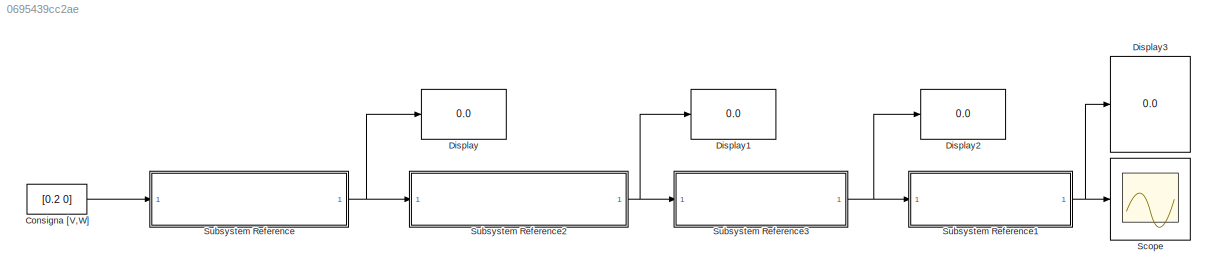
MODEL slx_0695439cc2ae
KIND model
CONFIG AbsTol = auto
CONFIG EnableMultiTasking = on
CONFIG FixedStep = auto
CONFIG MaxStep = auto
CONFIG MinStep = auto
CONFIG RelTol = 1e-3
CONFIG SampleTimeConstraint = Unconstrained
CONFIG SolverName = FixedStepDiscrete
CONFIG StartTime = 0.0
CONFIG StopTime = 10.0
WORKSPACE source: mxarray member
WORKSPACE d = 0.18
BLOCK [Constant] Consigna [V,W]
  Value = [0.2 0]
BLOCK [Display] Display
  Decimation = 1
BLOCK [Display] Display1
  Decimation = 1
BLOCK [Display] Display2
  Decimation = 1
BLOCK [Display] Display3
  Decimation = 1
BLOCK [Scope] Scope
  Floating = off
  NumInputPorts = 1
  ScopeSpecificationString = Simulink.scopes.TimeScopeBlockCfg('CurrentConfiguration', extmgr.ConfigurationSet(extmgr.Configuration('Core','General UI',true),extmgr.Configuration('Core','Source UI',true),extmgr.Configuration('Sources','WiredSimulink',true),extmgr.Configuration('Visuals','Time Domain',true,'SerializedDisplays',{struct('MinYLimReal','-0.48971','MaxYLimReal','1.9937','YLabelReal','','MinYLimMag','0.00000','MaxYL...<+1477ch>
BLOCK [SubSystem] Subsystem Reference
  ReferencedSubsystem = MyPieroMCI
BLOCK [SubSystem] Subsystem Reference1
  ReferencedSubsystem = Odometria
BLOCK [SubSystem] Subsystem Reference2
  ReferencedSubsystem = MyPieroControlVel
BLOCK [SubSystem] Subsystem Reference3
  ReferencedSubsystem = MyPieroMCD
LINE Consigna [V,W]:1 -> Subsystem Reference:1
NET Subsystem Reference1:1 -> Display3:1, Scope:1
NET Subsystem Reference2:1 -> Display1:1, Subsystem Reference3:1
NET Subsystem Reference3:1 -> Display2:1, Subsystem Reference1:1
NET Subsystem Reference:1 -> Display:1, Subsystem Reference2:1
note: NET lines group one-source signal fan-out (src -> all destinations, sorted); 1:1 wires keep LINE
